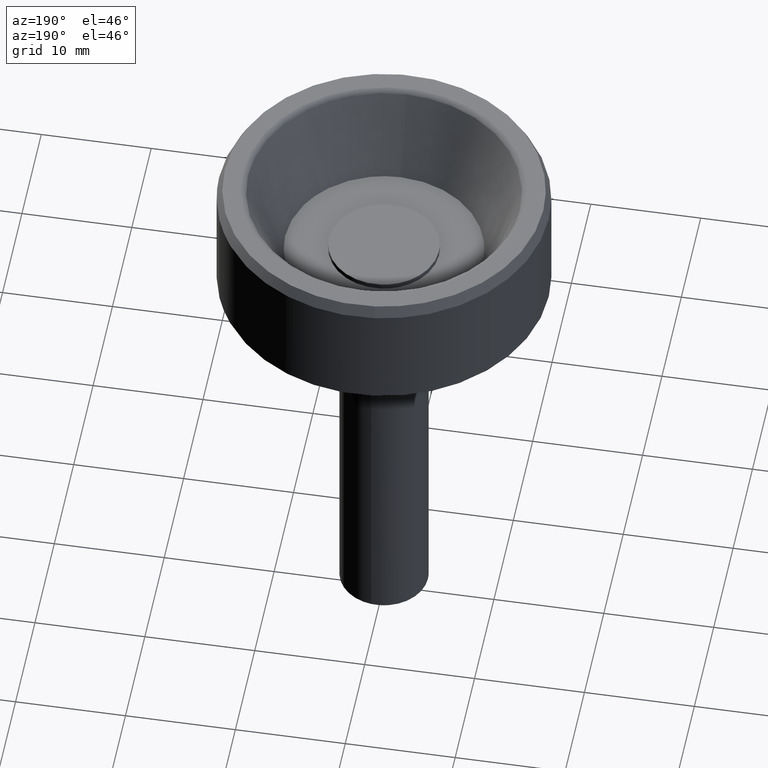
[diagram: clean part render]
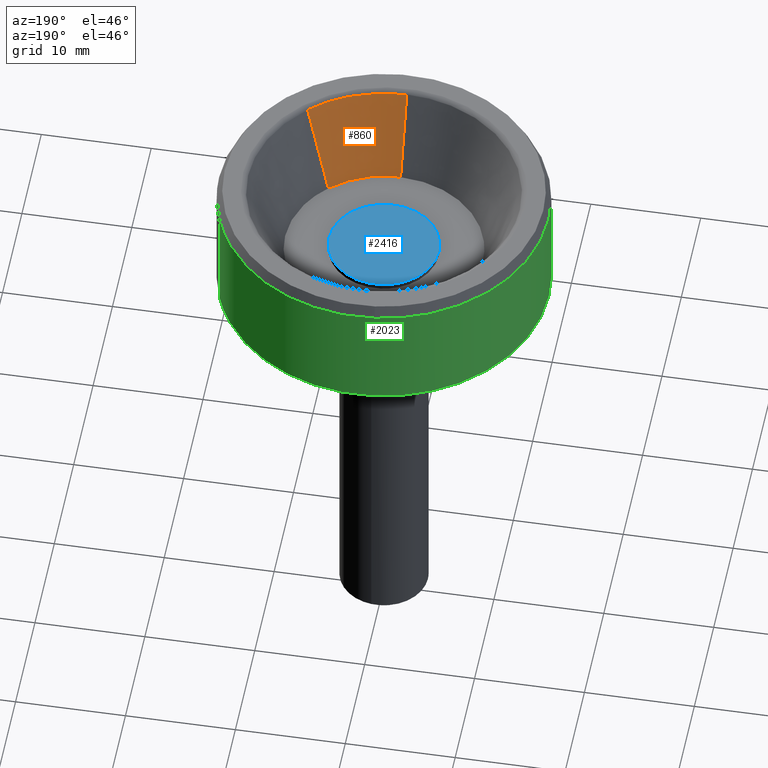
[diagram: same view with three faces highlighted in distinct colors, each labeled with its STEP entity id]
A machine part, auxiliary view with three faces highlighted in distinct colors.
Their STEP definitions:

[orange] entity #860 — the highlighted face is a freeform B-spline surface patch.
#667=CARTESIAN_POINT('',(8.527623674305811,-8.954399273453731,17.711442732665560));
#668=VERTEX_POINT('',#667);
#731=CARTESIAN_POINT('',(0.107906577973306,-12.364869107656711,17.711442732669330));
#732=VERTEX_POINT('',#731);
#748=CARTESIAN_POINT('',(0.078535537116373,-8.999655902318942,10.499996927469409));
#749=VERTEX_POINT('',#748);
#750=CARTESIAN_POINT('',(0.078535537116373,-8.999655902318942,10.499996927469409));
#751=CARTESIAN_POINT('',(0.107906577973306,-12.364869107656711,17.711442732669330));
#752=QUASI_UNIFORM_CURVE('',1,(#750,#751),.UNSPECIFIED.,.F.,.U.);
#753=EDGE_CURVE('',#749,#732,#752,.T.);
#789=CARTESIAN_POINT('',(6.206753185055485,-6.517377915987657,10.500000000000000));
#790=VERTEX_POINT('',#789);
#804=CARTESIAN_POINT('',(6.206753185055485,-6.517377915987657,10.500000000000000));
#805=CARTESIAN_POINT('',(8.527623674305811,-8.954399273453731,17.711442732665560));
#806=QUASI_UNIFORM_CURVE('',1,(#804,#805),.UNSPECIFIED.,.F.,.U.);
#807=EDGE_CURVE('',#790,#668,#806,.T.);
#812=CARTESIAN_POINT('',(0.047583560579134,-8.915790747805231,10.319713931664857));
#813=CARTESIAN_POINT('',(0.062683477517824,-8.915658972826455,10.319713931664854));
#814=CARTESIAN_POINT('',(3.598854873064826,-8.884799272572050,10.319713931664852));
#815=CARTESIAN_POINT('',(6.161565209764442,-6.444230266182921,10.319713931664852));
#816=CARTESIAN_POINT('',(6.174399842075789,-6.432007345246873,10.319713931664854));
#817=CARTESIAN_POINT('',(0.066453480190503,-12.451470983484120,17.896235953449381));
#818=CARTESIAN_POINT('',(0.087541478208110,-12.451286951313447,17.896235953449381));
#819=CARTESIAN_POINT('',(5.026030589240564,-12.408189409755353,17.896235953449374));
#820=CARTESIAN_POINT('',(8.605019183644838,-8.999778980907468,17.896235953449377));
#821=CARTESIAN_POINT('',(8.622943567059489,-8.982708891481456,17.896235953449374));
#829=(BOUNDED_SURFACE()B_SPLINE_SURFACE(2,1,((#812,#817),(#813,#818),(#814,#819),(#815,#820),(#816,#821)),.UNSPECIFIED.,.F.,.F.,.U.)B_SPLINE_SURFACE_WITH_KNOTS((3,1,1,3),(2,2),(0.0,0.049511332714220,9.950712898461205,10.000218931681840),(0.0,8.360928817882998),.UNSPECIFIED.)GEOMETRIC_REPRESENTATION_ITEM()RATIONAL_B_SPLINE_SURFACE(((1.001406038668106,1.001406038668106),(1.000703019334053,1.000703019334053),(0.859411254969543,0.859411254969543),(0.853759587404897,0.853759587404897),(0.853731469641469,0.853731469641469)))REPRESENTATION_ITEM('')SURFACE());
#830=CARTESIAN_POINT('',(0.107906577973306,-12.364869107656713,17.711442732669333));
#831=CARTESIAN_POINT('',(4.991221425310458,-12.322253064585203,17.711442732665542));
#832=CARTESIAN_POINT('',(8.527623674305811,-8.954399273453731,17.711442732665557));
#840=(BOUNDED_CURVE()B_SPLINE_CURVE(2,(#830,#831,#832),.UNSPECIFIED.,.F.,.U.)B_SPLINE_CURVE_WITH_KNOTS((3,3),(0.751539894335578,0.871317023849532),.UNSPECIFIED.)CURVE()GEOMETRIC_REPRESENTATION_ITEM()RATIONAL_B_SPLINE_CURVE((0.996414028099038,0.857815109939315,0.853680523245777))REPRESENTATION_ITEM(''));
#841=EDGE_CURVE('',#732,#668,#840,.T.);
#842=ORIENTED_EDGE('',*,*,#841,.T.);
#843=ORIENTED_EDGE('',*,*,#807,.F.);
#844=CARTESIAN_POINT('',(6.206753185055486,-6.517377915987657,10.500000000000000));
#845=CARTESIAN_POINT('',(3.632813657969149,-8.968640195496880,10.499998463734704));
#846=CARTESIAN_POINT('',(0.078535537116373,-8.999655902318942,10.499996927469406));
#854=(BOUNDED_CURVE()B_SPLINE_CURVE(2,(#844,#845,#846),.UNSPECIFIED.,.F.,.U.)B_SPLINE_CURVE_WITH_KNOTS((3,3),(0.628682976150487,0.748460169663199),.UNSPECIFIED.)CURVE()GEOMETRIC_REPRESENTATION_ITEM()RATIONAL_B_SPLINE_CURVE((0.853680523245778,0.857815112148511,0.996414176210176))REPRESENTATION_ITEM(''));
#855=EDGE_CURVE('',#790,#749,#854,.T.);
#856=ORIENTED_EDGE('',*,*,#855,.T.);
#857=ORIENTED_EDGE('',*,*,#753,.T.);
#858=EDGE_LOOP('',(#842,#843,#856,#857));
#859=FACE_OUTER_BOUND('',#858,.T.);
#860=ADVANCED_FACE('',(#859),#829,.F.);

[blue] entity #2416 — the highlighted face is a freeform B-spline surface patch.
#883=CARTESIAN_POINT('',(-0.590171173324832,4.965047631813453,11.0));
#884=VERTEX_POINT('',#883);
#885=CARTESIAN_POINT('',(5.0,0.0,11.0));
#886=VERTEX_POINT('',#885);
#887=CARTESIAN_POINT('',(-0.590171173324832,4.965047631813453,11.000000000000005));
#888=CARTESIAN_POINT('',(-0.296120598301024,5.000000000000001,11.000000000000004));
#889=CARTESIAN_POINT('',(0.0,5.0,11.0));
#890=CARTESIAN_POINT('',(5.000000000000001,5.000000000000001,11.0));
#891=CARTESIAN_POINT('',(5.0,0.0,11.0));
#899=(BOUNDED_CURVE()B_SPLINE_CURVE(2,(#887,#888,#889,#890,#891),.UNSPECIFIED.,.F.,.U.)B_SPLINE_CURVE_WITH_KNOTS((3,2,3),(0.229562473512850,0.250000000000000,0.500000000000000),.UNSPECIFIED.)CURVE()GEOMETRIC_REPRESENTATION_ITEM()RATIONAL_B_SPLINE_CURVE((0.956026754182410,0.976055948330374,1.0,0.707106781186548,1.0))REPRESENTATION_ITEM(''));
#900=EDGE_CURVE('',#884,#886,#899,.T.);
#902=CARTESIAN_POINT('',(0.305242697724841,-4.990673992106242,11.0));
#903=VERTEX_POINT('',#902);
#904=CARTESIAN_POINT('',(5.0,0.0,11.0));
#905=CARTESIAN_POINT('',(5.0,-4.703530334432992,11.0));
#906=CARTESIAN_POINT('',(0.305242697724841,-4.990673992106243,11.000000000000004));
#914=(BOUNDED_CURVE()B_SPLINE_CURVE(2,(#904,#905,#906),.UNSPECIFIED.,.F.,.U.)B_SPLINE_CURVE_WITH_KNOTS((3,3),(0.500000000000000,0.739332962238472),.UNSPECIFIED.)CURVE()GEOMETRIC_REPRESENTATION_ITEM()RATIONAL_B_SPLINE_CURVE((1.0,0.719603993287262,0.976072041665709))REPRESENTATION_ITEM(''));
#915=EDGE_CURVE('',#886,#903,#914,.T.);
#982=CARTESIAN_POINT('',(-5.0,0.0,11.0));
#983=VERTEX_POINT('',#982);
#984=CARTESIAN_POINT('',(-5.0,0.0,11.0));
#985=CARTESIAN_POINT('',(-5.0,4.440872629682908,10.999999999999998));
#986=CARTESIAN_POINT('',(-0.590171173324832,4.965047631813453,11.000000000000004));
#994=(BOUNDED_CURVE()B_SPLINE_CURVE(2,(#984,#985,#986),.UNSPECIFIED.,.F.,.U.)B_SPLINE_CURVE_WITH_KNOTS((3,3),(0.0,0.229562473512850),.UNSPECIFIED.)CURVE()GEOMETRIC_REPRESENTATION_ITEM()RATIONAL_B_SPLINE_CURVE((1.0,0.731050832856173,0.956026754182410))REPRESENTATION_ITEM(''));
#995=EDGE_CURVE('',#983,#884,#994,.T.);
#1029=CARTESIAN_POINT('',(0.305242697724841,-4.990673992106242,11.000000000000005));
#1030=CARTESIAN_POINT('',(0.152763816543643,-5.000000000000001,11.000000000000002));
#1031=CARTESIAN_POINT('',(0.0,-5.0,11.0));
#1032=CARTESIAN_POINT('',(-5.000000000000001,-5.000000000000001,11.0));
#1033=CARTESIAN_POINT('',(-5.0,0.0,11.0));
#1041=(BOUNDED_CURVE()B_SPLINE_CURVE(2,(#1029,#1030,#1031,#1032,#1033),.UNSPECIFIED.,.F.,.U.)B_SPLINE_CURVE_WITH_KNOTS((3,2,3),(0.739332962238472,0.750000000000000,1.0),.UNSPECIFIED.)CURVE()GEOMETRIC_REPRESENTATION_ITEM()RATIONAL_B_SPLINE_CURVE((0.976072041665709,0.987502787899286,1.0,0.707106781186548,1.0))REPRESENTATION_ITEM(''));
#1042=EDGE_CURVE('',#903,#983,#1041,.T.);
#2405=CARTESIAN_POINT('',(-5.499499980618060,-5.499378285062251,11.0));
#2406=CARTESIAN_POINT('',(5.499500248838961,-5.499378285062251,11.0));
#2407=CARTESIAN_POINT('',(-5.499499980618060,5.499409041058955,11.0));
#2408=CARTESIAN_POINT('',(5.499500248838961,5.499409041058955,11.0));
#2409=B_SPLINE_SURFACE_WITH_KNOTS('',1,1,((#2405,#2407),(#2406,#2408)),.UNSPECIFIED.,.F.,.F.,.U.,(2,2),(2,2),(0.0,10.999000229457019),(0.0,10.998787326121210),.UNSPECIFIED.);
#2410=ORIENTED_EDGE('',*,*,#1042,.F.);
#2411=ORIENTED_EDGE('',*,*,#915,.F.);
#2412=ORIENTED_EDGE('',*,*,#900,.F.);
#2413=ORIENTED_EDGE('',*,*,#995,.F.);
#2414=EDGE_LOOP('',(#2410,#2411,#2412,#2413));
#2415=FACE_OUTER_BOUND('',#2414,.T.);
#2416=ADVANCED_FACE('',(#2415),#2409,.T.);

[green] entity #2023 — the highlighted face is a freeform B-spline surface patch.
#1649=CARTESIAN_POINT('',(-15.0,0.0,7.0));
#1650=VERTEX_POINT('',#1649);
#1651=CARTESIAN_POINT('',(-4.330129861118900,14.361405759398879,7.000000000002435));
#1652=VERTEX_POINT('',#1651);
#1653=CARTESIAN_POINT('',(-15.0,0.0,7.0));
#1654=CARTESIAN_POINT('',(-15.000000000000002,11.144316563703111,7.0));
#1655=CARTESIAN_POINT('',(-4.330129861118900,14.361405759398878,7.000000000002435));
#1663=(BOUNDED_CURVE()B_SPLINE_CURVE(2,(#1653,#1654,#1655),.UNSPECIFIED.,.F.,.U.)B_SPLINE_CURVE_WITH_KNOTS((3,3),(0.0,0.200860796531032),.UNSPECIFIED.)CURVE()GEOMETRIC_REPRESENTATION_ITEM()RATIONAL_B_SPLINE_CURVE((1.0,0.764676939082369,0.907491297829025))REPRESENTATION_ITEM(''));
#1664=EDGE_CURVE('',#1650,#1652,#1663,.T.);
#1742=CARTESIAN_POINT('',(0.915713071876283,-14.972022895045560,6.999999999999998));
#1743=VERTEX_POINT('',#1742);
#1757=CARTESIAN_POINT('',(0.915713071876283,-14.972022895045562,6.999999999999998));
#1758=CARTESIAN_POINT('',(0.458283917847209,-15.0,7.0));
#1759=CARTESIAN_POINT('',(0.0,-15.0,7.0));
#1760=CARTESIAN_POINT('',(-14.999999999999996,-14.999999999999996,6.999999999999999));
#1761=CARTESIAN_POINT('',(-15.0,0.0,7.0));
#1769=(BOUNDED_CURVE()B_SPLINE_CURVE(2,(#1757,#1758,#1759,#1760,#1761),.UNSPECIFIED.,.F.,.U.)B_SPLINE_CURVE_WITH_KNOTS((3,2,3),(0.739333135354923,0.750000000000000,1.0),.UNSPECIFIED.)CURVE()GEOMETRIC_REPRESENTATION_ITEM()RATIONAL_B_SPLINE_CURVE((0.976072412687497,0.987502990717823,1.0,0.707106781186547,1.0))REPRESENTATION_ITEM(''));
#1770=EDGE_CURVE('',#1743,#1650,#1769,.T.);
#1797=CARTESIAN_POINT('',(14.042153892449431,5.274269054643193,7.0));
#1798=VERTEX_POINT('',#1797);
#1799=CARTESIAN_POINT('',(-4.330129861118899,14.361405759398886,7.000000000002435));
#1800=CARTESIAN_POINT('',(-2.212153888342506,15.000000000000005,7.0));
#1801=CARTESIAN_POINT('',(0.0,15.0,7.0));
#1802=CARTESIAN_POINT('',(10.389144822520771,15.000000000000007,7.000000000000001));
#1803=CARTESIAN_POINT('',(14.042153892449440,5.274269054643193,7.0));
#1811=(BOUNDED_CURVE()B_SPLINE_CURVE(2,(#1799,#1800,#1801,#1802,#1803),.UNSPECIFIED.,.F.,.U.)B_SPLINE_CURVE_WITH_KNOTS((3,2,3),(0.200860796531032,0.250000000000000,0.440284183524649),.UNSPECIFIED.)CURVE()GEOMETRIC_REPRESENTATION_ITEM()RATIONAL_B_SPLINE_CURVE((0.907491297829025,0.942429842104179,1.0,0.777068211992704,0.893499570086675))REPRESENTATION_ITEM(''));
#1812=EDGE_CURVE('',#1652,#1798,#1811,.T.);
#1899=CARTESIAN_POINT('',(14.042154955236841,5.274266225088036,17.0));
#1900=VERTEX_POINT('',#1899);
#1916=CARTESIAN_POINT('',(0.915728093039465,-14.972021976328501,16.999999999994230));
#1917=VERTEX_POINT('',#1916);
#1931=CARTESIAN_POINT('',(0.915728093039465,-14.972021976328501,16.999999999994230));
#1932=CARTESIAN_POINT('',(0.915713071876283,-14.972022895045560,6.999999999999998));
#1933=QUASI_UNIFORM_CURVE('',1,(#1931,#1932),.UNSPECIFIED.,.F.,.U.);
#1934=EDGE_CURVE('',#1917,#1743,#1933,.T.);
#1939=CARTESIAN_POINT('',(14.042154955236841,5.274266225088036,17.0));
#1940=CARTESIAN_POINT('',(14.042153892449431,5.274269054643193,7.0));
#1941=QUASI_UNIFORM_CURVE('',1,(#1939,#1940),.UNSPECIFIED.,.F.,.U.);
#1942=EDGE_CURVE('',#1900,#1798,#1941,.T.);
#1947=CARTESIAN_POINT('',(0.915728093022855,-14.972021976328000,17.250000000000000));
#1948=CARTESIAN_POINT('',(-14.056293883305147,-15.887750069350853,17.250000000000004));
#1949=CARTESIAN_POINT('',(-14.972021976328000,-0.915728093022855,17.250000000000000));
#1950=CARTESIAN_POINT('',(-15.887750069350853,14.056293883305147,17.250000000000004));
#1951=CARTESIAN_POINT('',(-0.915728093022855,14.972021976328000,17.250000000000000));
#1952=CARTESIAN_POINT('',(10.145543727045979,15.648558343040134,17.250000000000004));
#1953=CARTESIAN_POINT('',(14.042153681649852,5.274269615873581,17.250000000000007));
#1954=CARTESIAN_POINT('',(0.915728093022855,-14.972021976328000,6.743750000000000));
#1955=CARTESIAN_POINT('',(-14.056293883305147,-15.887750069350853,6.743750000000000));
#1956=CARTESIAN_POINT('',(-14.972021976328000,-0.915728093022855,6.743750000000000));
#1957=CARTESIAN_POINT('',(-15.887750069350853,14.056293883305147,6.743750000000000));
#1958=CARTESIAN_POINT('',(-0.915728093022855,14.972021976328000,6.743750000000000));
#1959=CARTESIAN_POINT('',(10.145543727045979,15.648558343040134,6.743750000000000));
#1960=CARTESIAN_POINT('',(14.042153681649852,5.274269615873581,6.743750000000000));
#1968=(BOUNDED_SURFACE()B_SPLINE_SURFACE(2,1,((#1947,#1954),(#1948,#1955),(#1949,#1956),(#1950,#1957),(#1951,#1958),(#1952,#1959),(#1953,#1960)),.UNSPECIFIED.,.F.,.F.,.U.)B_SPLINE_SURFACE_WITH_KNOTS((3,2,2,3),(2,2),(0.0,24.852813742385699,49.705627484771391,69.587878478679954),(0.0,10.506250000000000),.UNSPECIFIED.)GEOMETRIC_REPRESENTATION_ITEM()RATIONAL_B_SPLINE_SURFACE(((1.0,1.0),(0.707106781186548,0.707106781186548),(1.0,1.0),(0.707106781186548,0.707106781186548),(1.0,1.0),(0.765685424949238,0.765685424949238),(0.906274169979695,0.906274169979695)))REPRESENTATION_ITEM('')SURFACE());
#1969=CARTESIAN_POINT('',(-1.770513519855796,14.895142895454869,16.999999999999201));
#1970=VERTEX_POINT('',#1969);
#1971=CARTESIAN_POINT('',(-1.770513519855796,14.895142895454873,16.999999999999204));
#1972=CARTESIAN_POINT('',(-0.888361794783071,15.000000000000004,17.0));
#1973=CARTESIAN_POINT('',(0.0,15.0,17.0));
#1974=CARTESIAN_POINT('',(10.389146615225648,15.000000000000005,17.000000000000007));
#1975=CARTESIAN_POINT('',(14.042154955236837,5.274266225088036,16.999999999999996));
#1983=(BOUNDED_CURVE()B_SPLINE_CURVE(2,(#1971,#1972,#1973,#1974,#1975),.UNSPECIFIED.,.F.,.U.)B_SPLINE_CURVE_WITH_KNOTS((3,2,3),(0.229562473515545,0.250000000000000,0.440284209039369),.UNSPECIFIED.)CURVE()GEOMETRIC_REPRESENTATION_ITEM()RATIONAL_B_SPLINE_CURVE((0.956026754187691,0.976055948333531,1.0,0.777068182100349,0.893499601310648))REPRESENTATION_ITEM(''));
#1984=EDGE_CURVE('',#1970,#1900,#1983,.T.);
#1985=ORIENTED_EDGE('',*,*,#1984,.T.);
#1986=ORIENTED_EDGE('',*,*,#1942,.T.);
#1987=ORIENTED_EDGE('',*,*,#1812,.F.);
#1988=ORIENTED_EDGE('',*,*,#1664,.F.);
#1989=ORIENTED_EDGE('',*,*,#1770,.F.);
#1990=ORIENTED_EDGE('',*,*,#1934,.F.);
#1991=CARTESIAN_POINT('',(-15.0,0.0,17.0));
#1992=VERTEX_POINT('',#1991);
#1993=CARTESIAN_POINT('',(0.915728093039465,-14.972021976328501,16.999999999994227));
#1994=CARTESIAN_POINT('',(0.458291449511963,-15.000000000000004,17.000000000000004));
#1995=CARTESIAN_POINT('',(0.0,-15.0,17.0));
#1996=CARTESIAN_POINT('',(-14.999999999999996,-14.999999999999996,17.000000000000007));
#1997=CARTESIAN_POINT('',(-15.0,0.0,17.0));
#2005=(BOUNDED_CURVE()B_SPLINE_CURVE(2,(#1993,#1994,#1995,#1996,#1997),.UNSPECIFIED.,.F.,.U.)B_SPLINE_CURVE_WITH_KNOTS((3,2,3),(0.739332962241207,0.750000000000000,1.0),.UNSPECIFIED.)CURVE()GEOMETRIC_REPRESENTATION_ITEM()RATIONAL_B_SPLINE_CURVE((0.976072041671570,0.987502787902490,1.0,0.707106781186547,1.0))REPRESENTATION_ITEM(''));
#2006=EDGE_CURVE('',#1917,#1992,#2005,.T.);
#2007=ORIENTED_EDGE('',*,*,#2006,.T.);
#2008=CARTESIAN_POINT('',(-15.0,0.0,17.0));
#2009=CARTESIAN_POINT('',(-14.999999999999995,13.322617889262633,17.000000000000004));
#2010=CARTESIAN_POINT('',(-1.770513519855796,14.895142895454873,16.999999999999204));
#2018=(BOUNDED_CURVE()B_SPLINE_CURVE(2,(#2008,#2009,#2010),.UNSPECIFIED.,.F.,.U.)B_SPLINE_CURVE_WITH_KNOTS((3,3),(0.0,0.229562473515545),.UNSPECIFIED.)CURVE()GEOMETRIC_REPRESENTATION_ITEM()RATIONAL_B_SPLINE_CURVE((1.0,0.731050832853016,0.956026754187691))REPRESENTATION_ITEM(''));
#2019=EDGE_CURVE('',#1992,#1970,#2018,.T.);
#2020=ORIENTED_EDGE('',*,*,#2019,.T.);
#2021=EDGE_LOOP('',(#1985,#1986,#1987,#1988,#1989,#1990,#2007,#2020));
#2022=FACE_OUTER_BOUND('',#2021,.T.);
#2023=ADVANCED_FACE('',(#2022),#1968,.T.);